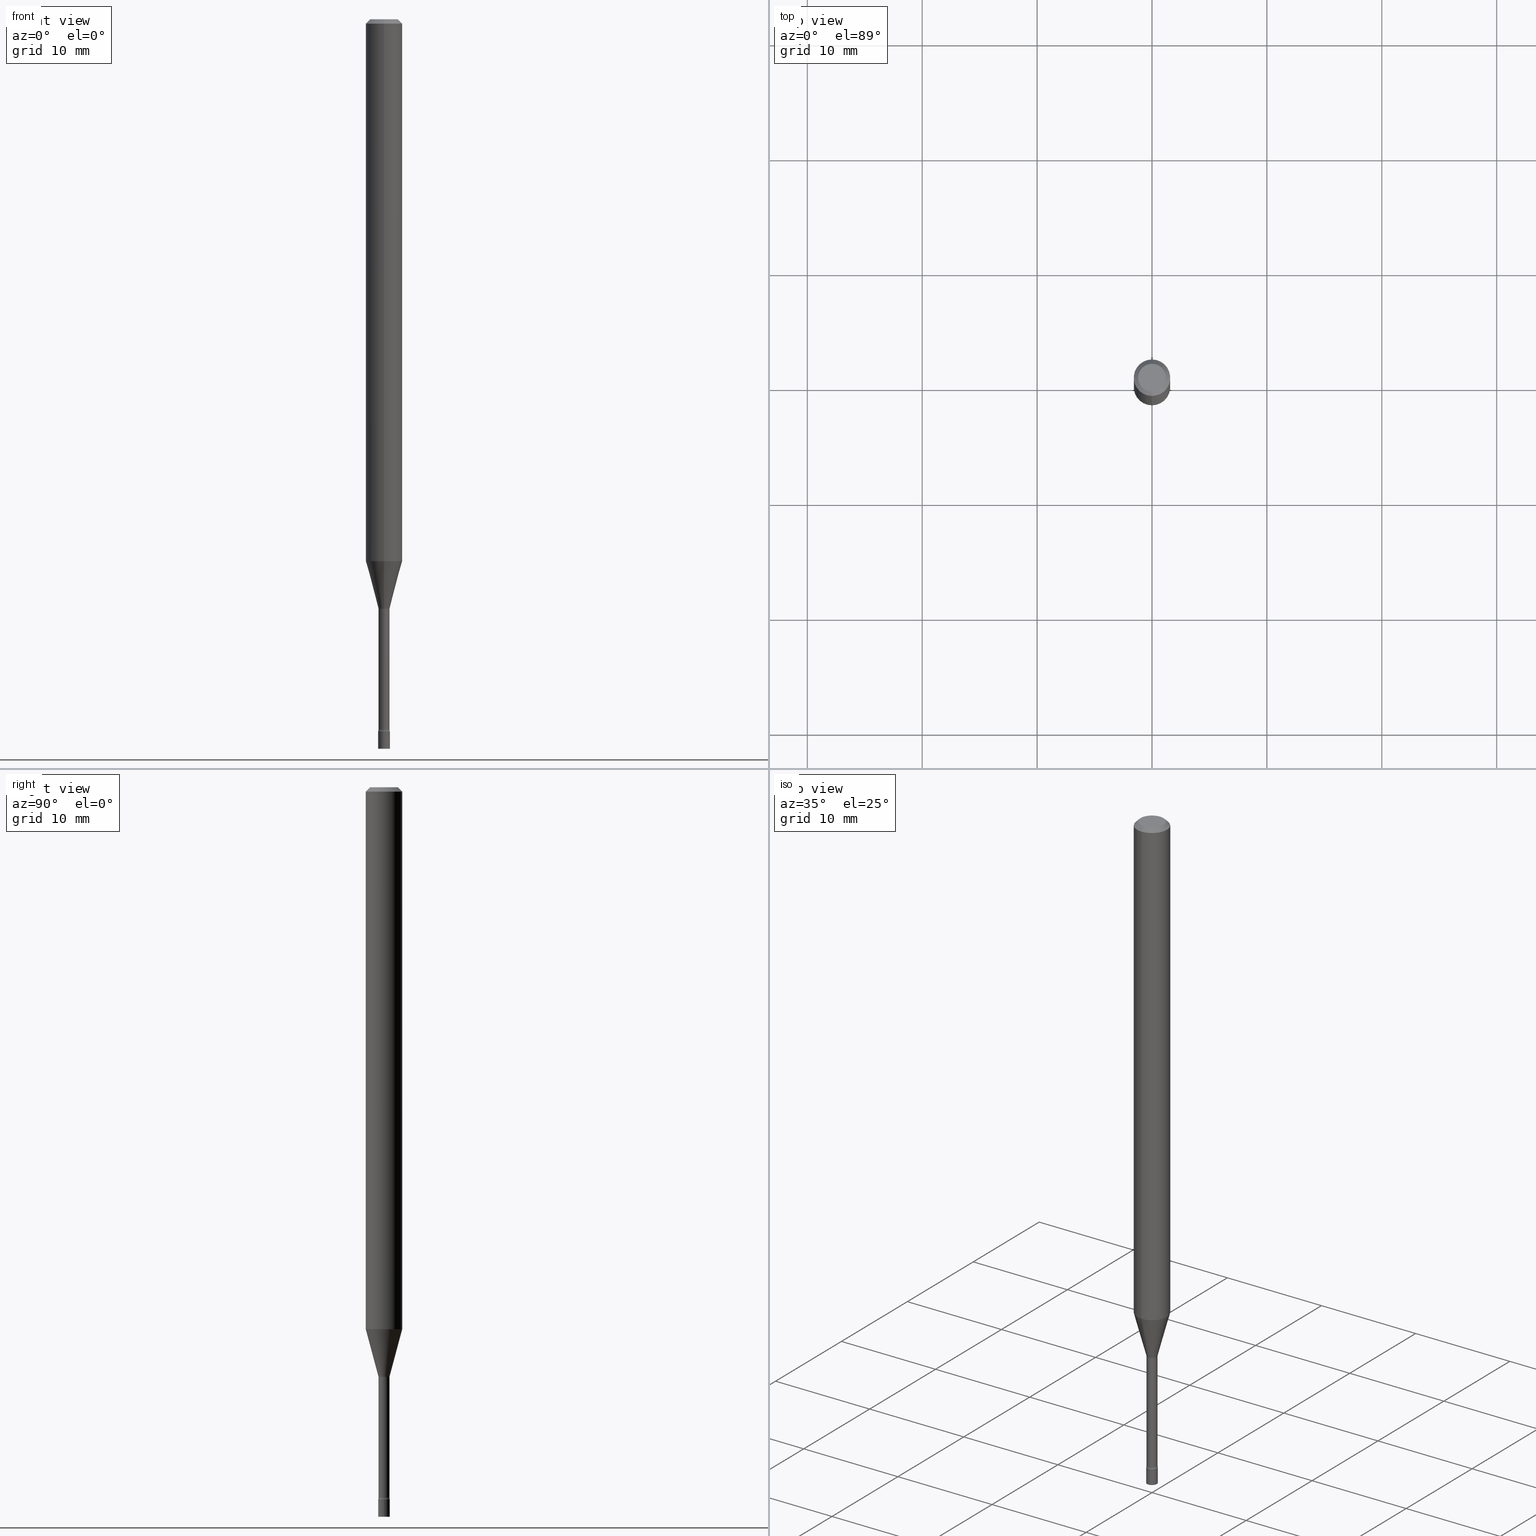
[diagram: canonical four-view strip — front | top / right | iso, engineering-drawing reading convention]
A machine part, canonical four-view strip (front | top / right | iso — engineering-drawing reading convention). The complete STEP part file that produces these views, byte-faithful:
ISO-10303-21;
HEADER;
FILE_DESCRIPTION (( 'STEP AP203' ),
    '1' );
FILE_NAME ('03596.STEP',
    '2024-03-08T22:00:57',
    ( '' ),
    ( '' ),
    'SwSTEP 2.0',
    'SolidWorks 2023',
    '' );
FILE_SCHEMA (( 'CONFIG_CONTROL_DESIGN' ));
ENDSEC;

DATA;
#1 = VECTOR ( 'NONE', #510, 39.37007874015748143 ) ;
#2 = VERTEX_POINT ( 'NONE', #470 ) ;
#3 = APPROVAL_PERSON_ORGANIZATION ( #377, #199, #175 ) ;
#4 = VERTEX_POINT ( 'NONE', #113 ) ;
#5 = DIRECTION ( 'NONE',  ( -2.438088387897960049E-29, 3.491481338843145188E-15, 1.000000000000000000 ) ) ;
#6 = APPROVAL_ROLE ( '' ) ;
#7 = AXIS2_PLACEMENT_3D ( 'NONE', #341, #99, #302 ) ;
#8 = AXIS2_PLACEMENT_3D ( 'NONE', #481, #90, #50 ) ;
#9 = ADVANCED_FACE ( 'NONE', ( #86 ), #170, .T. ) ;
#10 = PRODUCT_RELATED_PRODUCT_CATEGORY ( 'detail', '', ( #98 ) ) ;
#11 = CARTESIAN_POINT ( 'NONE',  ( 4.935092455948034223E-29, -7.046260916162748701E-15, -2.018092501787273285 ) ) ;
#12 = ADVANCED_FACE ( 'NONE', ( #350 ), #204, .F. ) ;
#13 = CARTESIAN_POINT ( 'NONE',  ( 3.668136459238664035E-31, -5.237317598119821879E-17, -0.01500000000000003067 ) ) ;
#14 = AXIS2_PLACEMENT_3D ( 'NONE', #176, #213, #67 ) ;
#15 = CLOSED_SHELL ( 'NONE', ( #127, #9, #101, #316 ) ) ;
#16 = ORIENTED_EDGE ( 'NONE', *, *, #116, .T. ) ;
#17 = ORIENTED_EDGE ( 'NONE', *, *, #298, .F. ) ;
#18 = DATE_AND_TIME ( #498, #414 ) ;
#19 = CARTESIAN_POINT ( 'NONE',  ( -4.364351673553916201E-16, -0.06250000000000000000, 2.182215665883254699E-16 ) ) ;
#20 = ADVANCED_FACE ( 'NONE', ( #252 ), #133, .T. ) ;
#21 = EDGE_LOOP ( 'NONE', ( #443, #78, #45, #126 ) ) ;
#22 = CIRCLE ( 'NONE', #60, 0.01931111260566398605 ) ;
#23 = CC_DESIGN_APPROVAL ( #41, ( #446 ) ) ;
#24 = DIRECTION ( 'NONE',  ( -2.445424306159104546E-29, 3.491545065413207519E-15, 1.000000000000000000 ) ) ;
#25 = CARTESIAN_POINT ( 'NONE',  ( 1.372137078140477580E-16, 0.01931111260565693613, -2.018092501787273285 ) ) ;
#26 = EDGE_LOOP ( 'NONE', ( #406, #493 ) ) ;
#27 = EDGE_CURVE ( 'NONE', #178, #150, #136, .T. ) ;
#28 = CARTESIAN_POINT ( 'NONE',  ( -1.312796983404428095E-16, -0.01880000000000857374, -2.434121224617320944 ) ) ;
#29 = CARTESIAN_POINT ( 'NONE',  ( 3.316907271900976096E-16, 0.04749999999999999362, -1.803038325650228623E-16 ) ) ;
#30 = EDGE_CURVE ( 'NONE', #438, #229, #347, .T. ) ;
#31 = ORIENTED_EDGE ( 'NONE', *, *, #429, .T. ) ;
#32 = ADVANCED_BREP_SHAPE_REPRESENTATION ( '03596', ( #282, #106, #509 ), #203 ) ;
#33 = AXIS2_PLACEMENT_3D ( 'NONE', #29, #180, #111 ) ;
#34 = CYLINDRICAL_SURFACE ( 'NONE', #209, 0.01880000000000003543 ) ;
#35 = DIRECTION ( 'NONE',  ( -2.445424306159104546E-29, 3.491545065413207519E-15, 1.000000000000000000 ) ) ;
#36 = VECTOR ( 'NONE', #141, 39.37007874015748143 ) ;
#37 = PERSON_AND_ORGANIZATION ( #426, #373 ) ;
#38 = DIRECTION ( 'NONE',  ( 7.105427357601000281E-15, 1.000000000000000000, 0.000000000000000000 ) ) ;
#39 = ORIENTED_EDGE ( 'NONE', *, *, #109, .T. ) ;
#40 = CARTESIAN_POINT ( 'NONE',  ( 4.935092455948034223E-29, -7.046260916162748701E-15, -2.018092501787273285 ) ) ;
#41 = APPROVAL ( #488, 'UNSPECIFIED' ) ;
#42 = EDGE_LOOP ( 'NONE', ( #144, #339, #193, #122 ) ) ;
#43 = DIRECTION ( 'NONE',  ( -4.851104656540964275E-15, -0.7071067811865500152, -0.7071067811865450192 ) ) ;
#44 = EDGE_CURVE ( 'NONE', #320, #482, #417, .T. ) ;
#45 = ORIENTED_EDGE ( 'NONE', *, *, #334, .T. ) ;
#46 = DIRECTION ( 'NONE',  ( 1.000000000000000000, -6.982962677686265922E-15, 4.876176775795935793E-29 ) ) ;
#47 = VECTOR ( 'NONE', #472, 39.37007874015748143 ) ;
#48 = EDGE_LOOP ( 'NONE', ( #409, #182, #401, #465 ) ) ;
#49 = CARTESIAN_POINT ( 'NONE',  ( 1.378452907375191717E-16, 0.01879999999999157692, -2.434121224617320944 ) ) ;
#50 = DIRECTION ( 'NONE',  ( -6.982962677686265922E-15, -1.000000000000000000, 0.000000000000000000 ) ) ;
#51 = LINE ( 'NONE', #216, #403 ) ;
#52 =( LENGTH_UNIT ( ) NAMED_UNIT ( * ) SI_UNIT ( $, .METRE. ) );
#53 = LOCAL_TIME ( 17, 0, 57.00000000000000000, #105 ) ;
#54 = EDGE_CURVE ( 'NONE', #4, #178, #95, .T. ) ;
#55 = AXIS2_PLACEMENT_3D ( 'NONE', #258, #253, #381 ) ;
#56 = CALENDAR_DATE ( 2024, 8, 3 ) ;
#57 = CARTESIAN_POINT ( 'NONE',  ( 4.364351673553919652E-16, 0.06249999999999995143, -0.01500000000000024751 ) ) ;
#58 = DIRECTION ( 'NONE',  ( -6.982962677686265922E-15, -1.000000000000000000, 3.491545065413207519E-15 ) ) ;
#59 = EDGE_LOOP ( 'NONE', ( #464, #432, #259, #226 ) ) ;
#60 = AXIS2_PLACEMENT_3D ( 'NONE', #407, #520, #160 ) ;
#61 = CC_DESIGN_APPROVAL ( #374, ( #467 ) ) ;
#62 = PRODUCT_DEFINITION_SHAPE ( 'NONE', 'NONE',  #467 ) ;
#63 = CYLINDRICAL_SURFACE ( 'NONE', #14, 0.06250000000000000000 ) ;
#64 = PERSON_AND_ORGANIZATION ( #426, #373 ) ;
#65 = DIRECTION ( 'NONE',  ( -2.445424306159104265E-29, 3.491545065413207519E-15, 1.000000000000000000 ) ) ;
#66 = PERSON_AND_ORGANIZATION_ROLE ( 'design_supplier' ) ;
#67 = DIRECTION ( 'NONE',  ( -6.982962677686265922E-15, -1.000000000000000000, 3.491545065413207519E-15 ) ) ;
#68 = DIRECTION ( 'NONE',  ( -2.445424306159104546E-29, 3.491545065413207519E-15, 1.000000000000000000 ) ) ;
#69 = ORIENTED_EDGE ( 'NONE', *, *, #298, .T. ) ;
#70 = AXIS2_PLACEMENT_3D ( 'NONE', #353, #327, #123 ) ;
#71 = DIRECTION ( 'NONE',  ( -6.982962677686265922E-15, -1.000000000000000000, 0.000000000000000000 ) ) ;
#72 = DIRECTION ( 'NONE',  ( -2.445424306159104546E-29, 3.491545065413207519E-15, 1.000000000000000000 ) ) ;
#73 = FACE_OUTER_BOUND ( 'NONE', #363, .T. ) ;
#74 = ORIENTED_EDGE ( 'NONE', *, *, #451, .T. ) ;
#75 = CARTESIAN_POINT ( 'NONE',  ( -3.773273898774340269E-16, -0.04749999999999999362, 1.369375066913362876E-16 ) ) ;
#76 = MECHANICAL_CONTEXT ( 'NONE', #288, 'mechanical' ) ;
#77 = DIRECTION ( 'NONE',  ( -6.982962677686266711E-15, -1.000000000000000000, 3.491545065413207519E-15 ) ) ;
#78 = ORIENTED_EDGE ( 'NONE', *, *, #27, .T. ) ;
#79 = EDGE_CURVE ( 'NONE', #411, #369, #507, .T. ) ;
#80 = AXIS2_PLACEMENT_3D ( 'NONE', #225, #220, #400 ) ;
#81 = FACE_OUTER_BOUND ( 'NONE', #42, .T. ) ;
#82 = AXIS2_PLACEMENT_3D ( 'NONE', #200, #371, #330 ) ;
#83 = DIRECTION ( 'NONE',  ( -2.445424306159104546E-29, 3.491545065413207519E-15, 1.000000000000000000 ) ) ;
#84 = VERTEX_POINT ( 'NONE', #442 ) ;
#85 = DIRECTION ( 'NONE',  ( -2.445468806185136597E-29, 3.491481338843145583E-15, 1.000000000000000000 ) ) ;
#86 = FACE_OUTER_BOUND ( 'NONE', #502, .T. ) ;
#87 = CYLINDRICAL_SURFACE ( 'NONE', #167, 0.02000000000000000042 ) ;
#88 = ORIENTED_EDGE ( 'NONE', *, *, #248, .F. ) ;
#89 = AXIS2_PLACEMENT_3D ( 'NONE', #13, #171, #421 ) ;
#90 = DIRECTION ( 'NONE',  ( -2.445424306159104546E-29, 3.491545065413207519E-15, 1.000000000000000000 ) ) ;
#91 = APPROVAL_DATE_TIME ( #321, #374 ) ;
#92 = ADVANCED_FACE ( 'NONE', ( #81 ), #108, .T. ) ;
#93 = CARTESIAN_POINT ( 'NONE',  ( -1.312796983405020727E-16, -0.01880000000000003543, 6.564104722976843832E-17 ) ) ;
#94 = AXIS2_PLACEMENT_3D ( 'NONE', #195, #238, #362 ) ;
#95 = CIRCLE ( 'NONE', #246, 0.04749999999999999362 ) ;
#96 = LINE ( 'NONE', #284, #312 ) ;
#97 = APPROVAL_ROLE ( '' ) ;
#98 = PRODUCT ( '03596', '03596', '', ( #76 ) ) ;
#99 = DIRECTION ( 'NONE',  ( -2.445424306159104546E-29, 3.491545065413207519E-15, 1.000000000000000000 ) ) ;
#100 = PERSON_AND_ORGANIZATION ( #426, #373 ) ;
#101 = ADVANCED_FACE ( 'NONE', ( #469 ), #87, .T. ) ;
#102 = DIRECTION ( 'NONE',  ( -2.445424306159104546E-29, 3.491545065413207519E-15, 1.000000000000000000 ) ) ;
#103 = CIRCLE ( 'NONE', #129, 0.01500000000000002720 ) ;
#104 = VECTOR ( 'NONE', #494, 39.37007874015748143 ) ;
#105 = COORDINATED_UNIVERSAL_TIME_OFFSET ( 5, 0, .BEHIND. ) ;
#106 = MANIFOLD_SOLID_BREP ( 'Body-Move/Copy2[2]', #326 ) ;
#107 = UNCERTAINTY_MEASURE_WITH_UNIT (LENGTH_MEASURE( 1.000000000000000082E-05 ), #293, 'distance_accuracy_value', 'NONE');
#108 = CYLINDRICAL_SURFACE ( 'NONE', #354, 0.01880000000000003543 ) ;
#109 = EDGE_CURVE ( 'NONE', #2, #217, #275, .T. ) ;
#110 = FACE_OUTER_BOUND ( 'NONE', #26, .T. ) ;
#111 = DIRECTION ( 'NONE',  ( 6.982962677686265922E-15, 1.000000000000000000, -3.491545065413207519E-15 ) ) ;
#112 = DIRECTION ( 'NONE',  ( -1.000000000000000000, 6.982962677686265922E-15, -4.883557194083112340E-29 ) ) ;
#113 = CARTESIAN_POINT ( 'NONE',  ( 3.840629472727447874E-16, 0.04749999999999999362, -1.947592745229183872E-16 ) ) ;
#114 = DIRECTION ( 'NONE',  ( -6.982962677686265922E-15, -1.000000000000000000, 3.483106191921935554E-15 ) ) ;
#115 = ORIENTED_EDGE ( 'NONE', *, *, #462, .T. ) ;
#116 = EDGE_CURVE ( 'NONE', #2, #311, #22, .T. ) ;
#117 = CIRCLE ( 'NONE', #131, 0.01880000000000007360 ) ;
#118 = DIRECTION ( 'NONE',  ( -6.982962677686265922E-15, -1.000000000000000000, 4.370956789862821150E-15 ) ) ;
#119 = APPROVAL_PERSON_ORGANIZATION ( #64, #41, #97 ) ;
#120 = EDGE_CURVE ( 'NONE', #482, #320, #461, .T. ) ;
#121 = AXIS2_PLACEMENT_3D ( 'NONE', #192, #278, #154 ) ;
#122 = ORIENTED_EDGE ( 'NONE', *, *, #79, .F. ) ;
#123 = DIRECTION ( 'NONE',  ( 1.000000000000000000, -6.982962677686284065E-15, 0.000000000000000000 ) ) ;
#124 = ORIENTED_EDGE ( 'NONE', *, *, #308, .F. ) ;
#125 = FACE_OUTER_BOUND ( 'NONE', #346, .T. ) ;
#126 = ORIENTED_EDGE ( 'NONE', *, *, #429, .F. ) ;
#127 = ADVANCED_FACE ( 'NONE', ( #506 ), #189, .T. ) ;
#128 = PERSON_AND_ORGANIZATION ( #426, #373 ) ;
#129 = AXIS2_PLACEMENT_3D ( 'NONE', #410, #309, #430 ) ;
#130 = LENGTH_MEASURE_WITH_UNIT ( LENGTH_MEASURE( 0.02539999999999999897 ), #52 );
#131 = AXIS2_PLACEMENT_3D ( 'NONE', #405, #68, #390 ) ;
#132 = CIRCLE ( 'NONE', #211, 0.02000000000000000042 ) ;
#133 = CYLINDRICAL_SURFACE ( 'NONE', #55, 0.06250000000000000000 ) ;
#134 = ORIENTED_EDGE ( 'NONE', *, *, #54, .F. ) ;
#135 = DIMENSIONAL_EXPONENTS ( 1.000000000000000000, 0.000000000000000000, 0.000000000000000000, 0.000000000000000000, 0.000000000000000000, 0.000000000000000000, 0.000000000000000000 ) ;
#136 = LINE ( 'NONE', #387, #274 ) ;
#137 = EDGE_LOOP ( 'NONE', ( #386, #239, #156, #17 ) ) ;
#138 = CIRCLE ( 'NONE', #222, 0.01500000000000002720 ) ;
#139 = CC_DESIGN_APPROVAL ( #199, ( #337 ) ) ;
#140 = COORDINATED_UNIVERSAL_TIME_OFFSET ( 5, 0, .BEHIND. ) ;
#141 = DIRECTION ( 'NONE',  ( 4.937700262164548042E-15, 0.7071067811865451302, -0.7071067811865499042 ) ) ;
#142 = CARTESIAN_POINT ( 'NONE',  ( 4.944676269635571097E-29, -7.059687238041231398E-15, -2.021974787463811207 ) ) ;
#143 = DIRECTION ( 'NONE',  ( 2.438088387897960049E-29, -3.491481338843145188E-15, -1.000000000000000000 ) ) ;
#144 = ORIENTED_EDGE ( 'NONE', *, *, #402, .F. ) ;
#145 = PERSON_AND_ORGANIZATION_ROLE ( 'classification_officer' ) ;
#146 = DIRECTION ( 'NONE',  ( 1.000000000000000000, -7.105427357601001070E-15, 4.926316288967482694E-29 ) ) ;
#147 = EDGE_LOOP ( 'NONE', ( #88, #304, #221, #279 ) ) ;
#148 = DIRECTION ( 'NONE',  ( -1.807323732225326984E-15, -0.2588190451025177419, 0.9659258262890690894 ) ) ;
#149 = CARTESIAN_POINT ( 'NONE',  ( 5.952567525274821981E-29, -8.498688832233400382E-15, -2.434121224617320944 ) ) ;
#150 = VERTEX_POINT ( 'NONE', #232 ) ;
#151 = CIRCLE ( 'NONE', #295, 0.06250000000000000000 ) ;
#152 = DIRECTION ( 'NONE',  ( -6.982962677686266711E-15, -1.000000000000000000, 3.491545065413207519E-15 ) ) ;
#153 = ORIENTED_EDGE ( 'NONE', *, *, #290, .T. ) ;
#154 = DIRECTION ( 'NONE',  ( 1.000000000000000000, -6.982962677686284065E-15, 0.000000000000000000 ) ) ;
#155 = DIRECTION ( 'NONE',  ( -6.982962677686265922E-15, -1.000000000000000000, 3.491545065413207913E-15 ) ) ;
#156 = ORIENTED_EDGE ( 'NONE', *, *, #281, .T. ) ;
#157 = DIRECTION ( 'NONE',  ( -6.982962677686265922E-15, -1.000000000000000000, 0.000000000000000000 ) ) ;
#158 = ORIENTED_EDGE ( 'NONE', *, *, #30, .T. ) ;
#159 = CONICAL_SURFACE ( 'NONE', #89, 0.06250000000000000000, 0.7853981633974483900 ) ;
#160 = DIRECTION ( 'NONE',  ( -6.982962677686265922E-15, -1.000000000000000000, 0.000000000000000000 ) ) ;
#161 = CC_DESIGN_SECURITY_CLASSIFICATION ( #337, ( #446 ) ) ;
#162 = AXIS2_PLACEMENT_3D ( 'NONE', #466, #267, #397 ) ;
#163 = ORIENTED_EDGE ( 'NONE', *, *, #120, .T. ) ;
#164 = DIRECTION ( 'NONE',  ( -2.445424306159104546E-29, 3.491545065413207519E-15, 1.000000000000000000 ) ) ;
#165 = ORIENTED_EDGE ( 'NONE', *, *, #79, .T. ) ;
#166 = DIRECTION ( 'NONE',  ( -2.445424306159104546E-29, 3.491545065413207519E-15, 1.000000000000000000 ) ) ;
#167 = AXIS2_PLACEMENT_3D ( 'NONE', #479, #85, #46 ) ;
#168 = EDGE_CURVE ( 'NONE', #2, #369, #103, .T. ) ;
#169 = CC_DESIGN_PERSON_AND_ORGANIZATION_ASSIGNMENT ( #215, #66, ( #446 ) ) ;
#170 = PLANE ( 'NONE',  #440 ) ;
#171 = DIRECTION ( 'NONE',  ( 2.445424306159104546E-29, -3.491545065413207519E-15, -1.000000000000000000 ) ) ;
#172 = FACE_OUTER_BOUND ( 'NONE', #191, .T. ) ;
#173 = ADVANCED_FACE ( 'NONE', ( #73 ), #358, .F. ) ;
#174 = ORIENTED_EDGE ( 'NONE', *, *, #462, .F. ) ;
#175 = APPROVAL_ROLE ( '' ) ;
#176 = CARTESIAN_POINT ( 'NONE',  ( 0.000000000000000000, 0.000000000000000000, 0.000000000000000000 ) ) ;
#177 = VECTOR ( 'NONE', #245, 39.37007874015748143 ) ;
#178 = VERTEX_POINT ( 'NONE', #75 ) ;
#179 = PLANE ( 'NONE',  #477 ) ;
#180 = DIRECTION ( 'NONE',  ( 2.445424306159104265E-29, -3.491545065413207519E-15, -1.000000000000000000 ) ) ;
#181 = CARTESIAN_POINT ( 'NONE',  ( 5.966835307028215574E-29, -8.519369959608227451E-15, -2.440000000000000391 ) ) ;
#182 = ORIENTED_EDGE ( 'NONE', *, *, #486, .T. ) ;
#183 = CONICAL_SURFACE ( 'NONE', #7, 0.01931111260566398605, 0.2617993877991497964 ) ;
#184 = AXIS2_PLACEMENT_3D ( 'NONE', #450, #294, #418 ) ;
#185 = EDGE_CURVE ( 'NONE', #438, #320, #441, .T. ) ;
#186 = CARTESIAN_POINT ( 'NONE',  ( -1.348487785898990376E-16, -0.01931111260567103249, -2.018092501787273285 ) ) ;
#187 = CARTESIAN_POINT ( 'NONE',  ( 0.02000000000000000042, -8.658873720331001644E-15, -2.440000000000000391 ) ) ;
#188 = VERTEX_POINT ( 'NONE', #269 ) ;
#189 = CYLINDRICAL_SURFACE ( 'NONE', #491, 0.02000000000000000042 ) ;
#190 = CARTESIAN_POINT ( 'NONE',  ( 0.000000000000000000, 0.000000000000000000, 0.000000000000000000 ) ) ;
#191 = EDGE_LOOP ( 'NONE', ( #328, #307, #478, #268 ) ) ;
#192 = CARTESIAN_POINT ( 'NONE',  ( 6.113672015462842613E-29, -8.728703347107864943E-15, -2.500000000000000000 ) ) ;
#193 = ORIENTED_EDGE ( 'NONE', *, *, #393, .T. ) ;
#194 = CARTESIAN_POINT ( 'NONE',  ( -1.312796983404523252E-16, -0.01880000000000705759, -2.021974787463811207 ) ) ;
#195 = CARTESIAN_POINT ( 'NONE',  ( 4.944586291704893259E-29, -7.059816091559188627E-15, -2.021974787463811207 ) ) ;
#196 = AXIS2_PLACEMENT_3D ( 'NONE', #416, #164, #205 ) ;
#197 = EDGE_LOOP ( 'NONE', ( #242, #434, #39, #424 ) ) ;
#198 = CARTESIAN_POINT ( 'NONE',  ( 4.944676269635571097E-29, -7.059687238041231398E-15, -2.021974787463811207 ) ) ;
#199 = APPROVAL ( #492, 'UNSPECIFIED' ) ;
#200 = CARTESIAN_POINT ( 'NONE',  ( 5.966835307028215574E-29, -8.519369959608227451E-15, -2.440000000000000391 ) ) ;
#201 = CARTESIAN_POINT ( 'NONE',  ( 1.335820343229585471E-16, 0.01879999999999294041, -2.021974787463811207 ) ) ;
#202 = CIRCLE ( 'NONE', #499, 0.01499999999999998036 ) ;
#203 =( GEOMETRIC_REPRESENTATION_CONTEXT ( 3 ) GLOBAL_UNCERTAINTY_ASSIGNED_CONTEXT ( ( #107 ) ) GLOBAL_UNIT_ASSIGNED_CONTEXT ( ( #293, #428, #219 ) ) REPRESENTATION_CONTEXT ( 'NONE', 'WORKASPACE' ) );
#204 = TOROIDAL_SURFACE ( 'NONE', #500, 0.03380000000000000365, 0.01500000000000002373 ) ;
#205 = DIRECTION ( 'NONE',  ( -6.982962677686265922E-15, -1.000000000000000000, 3.483106191921935554E-15 ) ) ;
#206 = CARTESIAN_POINT ( 'NONE',  ( 0.02000000000000000042, -8.868362600661589961E-15, -2.500000000000000000 ) ) ;
#207 = CC_DESIGN_PERSON_AND_ORGANIZATION_ASSIGNMENT ( #100, #145, ( #337 ) ) ;
#208 = CONICAL_SURFACE ( 'NONE', #485, 0.01931111260566398605, 0.2617993877991497964 ) ;
#209 = AXIS2_PLACEMENT_3D ( 'NONE', #483, #512, #317 ) ;
#210 = PLANE ( 'NONE',  #372 ) ;
#211 = AXIS2_PLACEMENT_3D ( 'NONE', #444, #412, #484 ) ;
#212 = DIRECTION ( 'NONE',  ( -6.982962677686265922E-15, -1.000000000000000000, 3.491545065413207913E-15 ) ) ;
#213 = DIRECTION ( 'NONE',  ( -2.445424306159104546E-29, 3.491545065413207519E-15, 1.000000000000000000 ) ) ;
#214 = FACE_OUTER_BOUND ( 'NONE', #463, .T. ) ;
#215 = PERSON_AND_ORGANIZATION ( #426, #373 ) ;
#216 = CARTESIAN_POINT ( 'NONE',  ( 1.335820343228990867E-16, 0.01880000000000003543, -6.564104722976843832E-17 ) ) ;
#217 = VERTEX_POINT ( 'NONE', #435 ) ;
#218 = CARTESIAN_POINT ( 'NONE',  ( 5.952459206816961247E-29, -8.498843950430159487E-15, -2.434121224617320944 ) ) ;
#219 =( NAMED_UNIT ( * ) SI_UNIT ( $, .STERADIAN. ) SOLID_ANGLE_UNIT ( ) );
#220 = DIRECTION ( 'NONE',  ( -2.445424306159104546E-29, 3.491545065413207519E-15, 1.000000000000000000 ) ) ;
#221 = ORIENTED_EDGE ( 'NONE', *, *, #448, .T. ) ;
#222 = AXIS2_PLACEMENT_3D ( 'NONE', #501, #146, #38 ) ;
#223 = CARTESIAN_POINT ( 'NONE',  ( 4.440892098501077785E-16, 0.06249999999999350520, -1.856909379709240637 ) ) ;
#224 = DESIGN_CONTEXT ( 'detailed design', #261, 'design' ) ;
#225 = CARTESIAN_POINT ( 'NONE',  ( 5.952567525274821981E-29, -8.498688832233400382E-15, -2.434121224617320944 ) ) ;
#226 = ORIENTED_EDGE ( 'NONE', *, *, #448, .F. ) ;
#227 = CARTESIAN_POINT ( 'NONE',  ( 0.02000000000000000042, -1.396592535537253145E-16, 9.752353551591871936E-31 ) ) ;
#228 = FACE_OUTER_BOUND ( 'NONE', #137, .T. ) ;
#229 = VERTEX_POINT ( 'NONE', #404 ) ;
#230 = EDGE_CURVE ( 'NONE', #311, #2, #325, .T. ) ;
#231 = AXIS2_PLACEMENT_3D ( 'NONE', #149, #72, #155 ) ;
#232 = CARTESIAN_POINT ( 'NONE',  ( -4.364351673553912750E-16, -0.06250000000000005551, -0.01499999999999981209 ) ) ;
#233 = EDGE_CURVE ( 'NONE', #217, #342, #422, .T. ) ;
#234 = CARTESIAN_POINT ( 'NONE',  ( 2.401634446869737436E-16, 0.03379999999999155208, -2.434121224617320944 ) ) ;
#235 = ORIENTED_EDGE ( 'NONE', *, *, #116, .F. ) ;
#236 = ADVANCED_FACE ( 'NONE', ( #490 ), #508, .F. ) ;
#237 = ADVANCED_FACE ( 'NONE', ( #244 ), #63, .T. ) ;
#238 = DIRECTION ( 'NONE',  ( -2.445424306159104546E-29, 3.491545065413207519E-15, 1.000000000000000000 ) ) ;
#239 = ORIENTED_EDGE ( 'NONE', *, *, #357, .T. ) ;
#240 = EDGE_CURVE ( 'NONE', #504, #299, #399, .T. ) ;
#241 = CARTESIAN_POINT ( 'NONE',  ( 0.000000000000000000, 0.000000000000000000, 0.000000000000000000 ) ) ;
#242 = ORIENTED_EDGE ( 'NONE', *, *, #364, .F. ) ;
#243 = CIRCLE ( 'NONE', #82, 0.02000000000000000042 ) ;
#244 = FACE_OUTER_BOUND ( 'NONE', #59, .T. ) ;
#245 = DIRECTION ( 'NONE',  ( -2.445424306159104546E-29, 3.491545065413207519E-15, 1.000000000000000000 ) ) ;
#246 = AXIS2_PLACEMENT_3D ( 'NONE', #365, #318, #152 ) ;
#247 = CONICAL_SURFACE ( 'NONE', #456, 0.06250000000000000000, 0.7853981633974483900 ) ;
#248 = EDGE_CURVE ( 'NONE', #342, #188, #96, .T. ) ;
#249 = CARTESIAN_POINT ( 'NONE',  ( 1.396592535537849721E-16, 0.01999999999999147945, -2.440000000000000391 ) ) ;
#250 = DATE_TIME_ROLE ( 'classification_date' ) ;
#251 = ADVANCED_FACE ( 'NONE', ( #214 ), #183, .T. ) ;
#252 = FACE_OUTER_BOUND ( 'NONE', #147, .T. ) ;
#253 = DIRECTION ( 'NONE',  ( -2.445424306159104546E-29, 3.491545065413207519E-15, 1.000000000000000000 ) ) ;
#254 = EDGE_LOOP ( 'NONE', ( #158, #153, #360, #349 ) ) ;
#255 = ADVANCED_FACE ( 'NONE', ( #296 ), #210, .F. ) ;
#256 = DATE_TIME_ROLE ( 'creation_date' ) ;
#257 = ADVANCED_FACE ( 'NONE', ( #375 ), #208, .T. ) ;
#258 = CARTESIAN_POINT ( 'NONE',  ( 0.000000000000000000, 0.000000000000000000, 0.000000000000000000 ) ) ;
#259 = ORIENTED_EDGE ( 'NONE', *, *, #334, .F. ) ;
#260 = DIRECTION ( 'NONE',  ( -1.000000000000000000, 6.982962677686265922E-15, -4.876176775795935793E-29 ) ) ;
#261 = APPLICATION_CONTEXT ( 'configuration controlled 3d designs of mechanical parts and assemblies' ) ;
#262 = DATE_AND_TIME ( #305, #287 ) ;
#263 = AXIS2_PLACEMENT_3D ( 'NONE', #218, #24, #71 ) ;
#264 = DIRECTION ( 'NONE',  ( -2.445468806185136597E-29, 3.491481338843145583E-15, 1.000000000000000000 ) ) ;
#265 = DIRECTION ( 'NONE',  ( 7.105427357601000281E-15, 1.000000000000000000, 0.000000000000000000 ) ) ;
#266 = ADVANCED_FACE ( 'NONE', ( #376 ), #159, .T. ) ;
#267 = DIRECTION ( 'NONE',  ( -2.445468806185136597E-29, 3.491481338843145583E-15, 1.000000000000000000 ) ) ;
#268 = ORIENTED_EDGE ( 'NONE', *, *, #393, .F. ) ;
#269 = CARTESIAN_POINT ( 'NONE',  ( 4.440892098501082715E-16, 0.06249999999999995143, -0.01500000000000024751 ) ) ;
#270 = DIRECTION ( 'NONE',  ( -2.445424306159104546E-29, 3.491545065413207519E-15, 1.000000000000000000 ) ) ;
#271 = ORIENTED_EDGE ( 'NONE', *, *, #281, .F. ) ;
#272 = AXIS2_PLACEMENT_3D ( 'NONE', #181, #355, #468 ) ;
#273 = LOCAL_TIME ( 17, 0, 57.00000000000000000, #285 ) ;
#274 = VECTOR ( 'NONE', #43, 39.37007874015748143 ) ;
#275 = LINE ( 'NONE', #186, #283 ) ;
#276 = ORIENTED_EDGE ( 'NONE', *, *, #168, .F. ) ;
#277 = APPROVAL_STATUS ( 'not_yet_approved' ) ;
#278 = DIRECTION ( 'NONE',  ( -2.445468806185136597E-29, 3.491481338843145583E-15, 1.000000000000000000 ) ) ;
#279 = ORIENTED_EDGE ( 'NONE', *, *, #451, .F. ) ;
#280 = CARTESIAN_POINT ( 'NONE',  ( 3.668136459238664035E-31, -5.237317598119821879E-17, -0.01500000000000003067 ) ) ;
#281 = EDGE_CURVE ( 'NONE', #511, #84, #413, .T. ) ;
#282 = MANIFOLD_SOLID_BREP ( 'Body-Move/Copy2[1]', #15 ) ;
#283 = VECTOR ( 'NONE', #148, 39.37007874015748143 ) ;
#284 = CARTESIAN_POINT ( 'NONE',  ( 4.440892098500625669E-16, 0.06250000000000000000, -2.182215665883254699E-16 ) ) ;
#285 = COORDINATED_UNIVERSAL_TIME_OFFSET ( 5, 0, .BEHIND. ) ;
#286 = LOCAL_TIME ( 17, 0, 57.00000000000000000, #340 ) ;
#287 = LOCAL_TIME ( 17, 0, 57.00000000000000000, #379 ) ;
#288 = APPLICATION_CONTEXT ( 'configuration controlled 3d designs of mechanical parts and assemblies' ) ;
#289 = PERSON_AND_ORGANIZATION_ROLE ( 'creator' ) ;
#290 = EDGE_CURVE ( 'NONE', #229, #482, #515, .T. ) ;
#291 = DIRECTION ( 'NONE',  ( 6.982962677686265922E-15, 1.000000000000000000, -3.483106191921935554E-15 ) ) ;
#292 = ADVANCED_FACE ( 'NONE', ( #314 ), #331, .F. ) ;
#293 =( CONVERSION_BASED_UNIT ( 'INCH', #130 ) LENGTH_UNIT ( ) NAMED_UNIT ( #135 ) );
#294 = DIRECTION ( 'NONE',  ( -2.445424306159104546E-29, 3.491545065413207519E-15, 1.000000000000000000 ) ) ;
#295 = AXIS2_PLACEMENT_3D ( 'NONE', #425, #270, #114 ) ;
#296 = FACE_OUTER_BOUND ( 'NONE', #474, .T. ) ;
#297 = PERSON_AND_ORGANIZATION_ROLE ( 'creator' ) ;
#298 = EDGE_CURVE ( 'NONE', #299, #84, #301, .T. ) ;
#299 = VERTEX_POINT ( 'NONE', #28 ) ;
#300 = ADVANCED_FACE ( 'NONE', ( #228 ), #378, .F. ) ;
#301 = CIRCLE ( 'NONE', #455, 0.01499999999999997169 ) ;
#302 = DIRECTION ( 'NONE',  ( -6.982962677686265922E-15, -1.000000000000000000, 0.000000000000000000 ) ) ;
#303 = ORIENTED_EDGE ( 'NONE', *, *, #364, .T. ) ;
#304 = ORIENTED_EDGE ( 'NONE', *, *, #395, .T. ) ;
#305 = CALENDAR_DATE ( 2024, 8, 3 ) ;
#306 = CC_DESIGN_PERSON_AND_ORGANIZATION_ASSIGNMENT ( #459, #297, ( #446 ) ) ;
#307 = ORIENTED_EDGE ( 'NONE', *, *, #402, .T. ) ;
#308 = EDGE_CURVE ( 'NONE', #311, #411, #138, .T. ) ;
#309 = DIRECTION ( 'NONE',  ( -1.000000000000000000, 6.982962677686265922E-15, -4.883557194083112340E-29 ) ) ;
#310 = CARTESIAN_POINT ( 'NONE',  ( -0.02000000000000000042, 1.421085471520200401E-16, -9.837870180509812545E-31 ) ) ;
#311 = VERTEX_POINT ( 'NONE', #348 ) ;
#312 = VECTOR ( 'NONE', #102, 39.37007874015748143 ) ;
#313 = APPROVAL_PERSON_ORGANIZATION ( #128, #374, #6 ) ;
#314 = FACE_OUTER_BOUND ( 'NONE', #356, .T. ) ;
#315 = ORIENTED_EDGE ( 'NONE', *, *, #109, .F. ) ;
#316 = ADVANCED_FACE ( 'NONE', ( #110 ), #179, .T. ) ;
#317 = DIRECTION ( 'NONE',  ( -6.982962677686267499E-15, -1.000000000000000000, 3.491545065413208308E-15 ) ) ;
#318 = DIRECTION ( 'NONE',  ( -2.445424306159104546E-29, 3.491545065413207519E-15, 1.000000000000000000 ) ) ;
#319 = CARTESIAN_POINT ( 'NONE',  ( 1.396592535537864759E-16, 0.01999999999999127129, -2.500000000000000000 ) ) ;
#320 = VERTEX_POINT ( 'NONE', #187 ) ;
#321 = DATE_AND_TIME ( #447, #273 ) ;
#322 = CARTESIAN_POINT ( 'NONE',  ( 4.540931331475802069E-29, -6.483482781643298717E-15, -1.856909379709240415 ) ) ;
#323 = APPLICATION_PROTOCOL_DEFINITION ( 'international standard', 'config_control_design', 1994, #288 ) ;
#324 = ORIENTED_EDGE ( 'NONE', *, *, #44, .T. ) ;
#325 = CIRCLE ( 'NONE', #336, 0.01931111260566398605 ) ;
#326 = CLOSED_SHELL ( 'NONE', ( #12, #385, #300, #266, #237, #251, #257, #20, #471, #173, #255, #292, #92, #236 ) ) ;
#327 = DIRECTION ( 'NONE',  ( -2.445468806185136597E-29, 3.491481338843145583E-15, 1.000000000000000000 ) ) ;
#328 = ORIENTED_EDGE ( 'NONE', *, *, #361, .T. ) ;
#329 = ORIENTED_EDGE ( 'NONE', *, *, #351, .T. ) ;
#330 = DIRECTION ( 'NONE',  ( -6.982962677686265922E-15, -1.000000000000000000, 0.000000000000000000 ) ) ;
#331 = TOROIDAL_SURFACE ( 'NONE', #231, 0.03380000000000005222, 0.01499999999999997689 ) ;
#332 = DIRECTION ( 'NONE',  ( -6.982962677686265922E-15, -1.000000000000000000, 3.491545065413207913E-15 ) ) ;
#333 = DIRECTION ( 'NONE',  ( -2.445424306159104546E-29, 3.491545065413207519E-15, 1.000000000000000000 ) ) ;
#334 = EDGE_CURVE ( 'NONE', #150, #188, #151, .T. ) ;
#335 = DIRECTION ( 'NONE',  ( -2.445424306159104546E-29, 3.491545065413207519E-15, 1.000000000000000000 ) ) ;
#336 = AXIS2_PLACEMENT_3D ( 'NONE', #40, #518, #157 ) ;
#337 = SECURITY_CLASSIFICATION ( '', '', #458 ) ;
#338 = DIRECTION ( 'NONE',  ( -2.445424306159104546E-29, 3.491545065413207519E-15, 1.000000000000000000 ) ) ;
#339 = ORIENTED_EDGE ( 'NONE', *, *, #240, .T. ) ;
#340 = COORDINATED_UNIVERSAL_TIME_OFFSET ( 5, 0, .BEHIND. ) ;
#341 = CARTESIAN_POINT ( 'NONE',  ( 4.935092455948034223E-29, -7.046260916162748701E-15, -2.018092501787273285 ) ) ;
#342 = VERTEX_POINT ( 'NONE', #223 ) ;
#343 = LINE ( 'NONE', #57, #36 ) ;
#344 = AXIS2_PLACEMENT_3D ( 'NONE', #437, #83, #77 ) ;
#345 = CARTESIAN_POINT ( 'NONE',  ( -2.360241385057365982E-16, -0.03380000000000855237, -2.434121224617320944 ) ) ;
#346 = EDGE_LOOP ( 'NONE', ( #352, #134, #31, #74 ) ) ;
#347 = CIRCLE ( 'NONE', #121, 0.02000000000000000042 ) ;
#348 = CARTESIAN_POINT ( 'NONE',  ( 2.906514588320780024E-16, 0.01931111260565693613, -2.018092501787273285 ) ) ;
#349 = ORIENTED_EDGE ( 'NONE', *, *, #185, .F. ) ;
#350 = FACE_OUTER_BOUND ( 'NONE', #519, .T. ) ;
#351 = EDGE_CURVE ( 'NONE', #178, #4, #436, .T. ) ;
#352 = ORIENTED_EDGE ( 'NONE', *, *, #27, .F. ) ;
#353 = CARTESIAN_POINT ( 'NONE',  ( 5.966943887091733341E-29, -8.519214466777275048E-15, -2.440000000000000391 ) ) ;
#354 = AXIS2_PLACEMENT_3D ( 'NONE', #433, #35, #394 ) ;
#355 = DIRECTION ( 'NONE',  ( -2.445424306159104546E-29, 3.491545065413207519E-15, 1.000000000000000000 ) ) ;
#356 = EDGE_LOOP ( 'NONE', ( #423, #382, #69, #115 ) ) ;
#357 = EDGE_CURVE ( 'NONE', #504, #511, #202, .T. ) ;
#358 = PLANE ( 'NONE',  #33 ) ;
#359 = PERSON_AND_ORGANIZATION_ROLE ( 'design_owner' ) ;
#360 = ORIENTED_EDGE ( 'NONE', *, *, #44, .F. ) ;
#361 = EDGE_CURVE ( 'NONE', #299, #504, #117, .T. ) ;
#362 = DIRECTION ( 'NONE',  ( -6.982962677686265922E-15, -1.000000000000000000, 0.000000000000000000 ) ) ;
#363 = EDGE_LOOP ( 'NONE', ( #366, #329 ) ) ;
#364 = EDGE_CURVE ( 'NONE', #311, #342, #392, .T. ) ;
#365 = CARTESIAN_POINT ( 'NONE',  ( 7.069937824021977262E-46, -1.009436540729143407E-31, -2.891088391579106214E-17 ) ) ;
#366 = ORIENTED_EDGE ( 'NONE', *, *, #54, .T. ) ;
#367 = AXIS2_PLACEMENT_3D ( 'NONE', #198, #166, #332 ) ;
#368 = CC_DESIGN_DATE_AND_TIME_ASSIGNMENT ( #262, #250, ( #337 ) ) ;
#369 = VERTEX_POINT ( 'NONE', #194 ) ;
#370 = CARTESIAN_POINT ( 'NONE',  ( 1.421085471520795991E-16, 0.01999999999999146905, -2.440000000000000391 ) ) ;
#371 = DIRECTION ( 'NONE',  ( -2.445424306159104546E-29, 3.491545065413207519E-15, 1.000000000000000000 ) ) ;
#372 = AXIS2_PLACEMENT_3D ( 'NONE', #249, #65, #58 ) ;
#373 = ORGANIZATION ( 'UNSPECIFIED', 'UNSPECIFIED', '' ) ;
#374 = APPROVAL ( #277, 'UNSPECIFIED' ) ;
#375 = FACE_OUTER_BOUND ( 'NONE', #197, .T. ) ;
#376 = FACE_OUTER_BOUND ( 'NONE', #21, .T. ) ;
#377 = PERSON_AND_ORGANIZATION ( #426, #373 ) ;
#378 = TOROIDAL_SURFACE ( 'NONE', #80, 0.03380000000000005222, 0.01499999999999997689 ) ;
#379 = COORDINATED_UNIVERSAL_TIME_OFFSET ( 5, 0, .BEHIND. ) ;
#380 = DATE_AND_TIME ( #56, #53 ) ;
#381 = DIRECTION ( 'NONE',  ( -6.982962677686265922E-15, -1.000000000000000000, 3.491545065413207519E-15 ) ) ;
#382 = ORIENTED_EDGE ( 'NONE', *, *, #361, .F. ) ;
#383 = APPROVAL_DATE_TIME ( #18, #41 ) ;
#384 = LINE ( 'NONE', #19, #104 ) ;
#385 = ADVANCED_FACE ( 'NONE', ( #172 ), #34, .T. ) ;
#386 = ORIENTED_EDGE ( 'NONE', *, *, #240, .F. ) ;
#387 = CARTESIAN_POINT ( 'NONE',  ( -4.287811248607203282E-16, -0.06250000000000005551, -0.01499999999999981209 ) ) ;
#388 = AXIS2_PLACEMENT_3D ( 'NONE', #322, #476, #118 ) ;
#389 = CIRCLE ( 'NONE', #196, 0.06250000000000000000 ) ;
#390 = DIRECTION ( 'NONE',  ( -6.982962677686265922E-15, -1.000000000000000000, 0.000000000000000000 ) ) ;
#391 = ORIENTED_EDGE ( 'NONE', *, *, #454, .T. ) ;
#392 = LINE ( 'NONE', #25, #445 ) ;
#393 = EDGE_CURVE ( 'NONE', #299, #369, #453, .T. ) ;
#394 = DIRECTION ( 'NONE',  ( -6.982962677686267499E-15, -1.000000000000000000, 3.491545065413208308E-15 ) ) ;
#395 = EDGE_CURVE ( 'NONE', #342, #217, #427, .T. ) ;
#396 = ORIENTED_EDGE ( 'NONE', *, *, #168, .T. ) ;
#397 = DIRECTION ( 'NONE',  ( 1.000000000000000000, -6.982962677686284065E-15, 0.000000000000000000 ) ) ;
#398 = DIRECTION ( 'NONE',  ( 1.000000000000000000, 0.000000000000000000, 0.000000000000000000 ) ) ;
#399 = CIRCLE ( 'NONE', #263, 0.01880000000000007360 ) ;
#400 = DIRECTION ( 'NONE',  ( -6.982962677686265922E-15, -1.000000000000000000, 3.491545065413207913E-15 ) ) ;
#401 = ORIENTED_EDGE ( 'NONE', *, *, #185, .T. ) ;
#402 = EDGE_CURVE ( 'NONE', #504, #411, #51, .T. ) ;
#403 = VECTOR ( 'NONE', #333, 39.37007874015748143 ) ;
#404 = CARTESIAN_POINT ( 'NONE',  ( -0.02000000000000000042, -8.481850359790549832E-15, -2.500000000000000000 ) ) ;
#405 = CARTESIAN_POINT ( 'NONE',  ( 5.952459206816961247E-29, -8.498843950430159487E-15, -2.434121224617320944 ) ) ;
#406 = ORIENTED_EDGE ( 'NONE', *, *, #30, .F. ) ;
#407 = CARTESIAN_POINT ( 'NONE',  ( 4.935092455948034223E-29, -7.046260916162748701E-15, -2.018092501787273285 ) ) ;
#408 = DIRECTION ( 'NONE',  ( 0.000000000000000000, 0.000000000000000000, 1.000000000000000000 ) ) ;
#409 = ORIENTED_EDGE ( 'NONE', *, *, #290, .F. ) ;
#410 = CARTESIAN_POINT ( 'NONE',  ( -2.360241385057463603E-16, -0.03380000000000706051, -2.021974787463811207 ) ) ;
#411 = VERTEX_POINT ( 'NONE', #201 ) ;
#412 = DIRECTION ( 'NONE',  ( -2.445468806185136597E-29, 3.491481338843145583E-15, 1.000000000000000000 ) ) ;
#413 = CIRCLE ( 'NONE', #272, 0.02000000000000000042 ) ;
#414 = LOCAL_TIME ( 17, 0, 57.00000000000000000, #140 ) ;
#415 = SHAPE_DEFINITION_REPRESENTATION ( #62, #32 ) ;
#416 = CARTESIAN_POINT ( 'NONE',  ( 3.668136459238664035E-31, -5.237317598119821879E-17, -0.01500000000000003067 ) ) ;
#417 = CIRCLE ( 'NONE', #162, 0.02000000000000000042 ) ;
#418 = DIRECTION ( 'NONE',  ( -6.982962677686265922E-15, -1.000000000000000000, 4.370956789862821150E-15 ) ) ;
#419 = CARTESIAN_POINT ( 'NONE',  ( 5.966943887091733341E-29, -8.519214466777275048E-15, -2.440000000000000391 ) ) ;
#420 = APPROVAL_DATE_TIME ( #517, #199 ) ;
#421 = DIRECTION ( 'NONE',  ( 6.982962677686265922E-15, 1.000000000000000000, -3.483106191921935554E-15 ) ) ;
#422 = CIRCLE ( 'NONE', #388, 0.06250000000000000000 ) ;
#423 = ORIENTED_EDGE ( 'NONE', *, *, #357, .F. ) ;
#424 = ORIENTED_EDGE ( 'NONE', *, *, #395, .F. ) ;
#425 = CARTESIAN_POINT ( 'NONE',  ( 3.668136459238664035E-31, -5.237317598119821879E-17, -0.01500000000000003067 ) ) ;
#426 = PERSON ( 'UNSPECIFIED', 'UNSPECIFIED', 'UNSPECIFIED', ('UNSPECIFIED'), ('UNSPECIFIED'), ('UNSPECIFIED') ) ;
#427 = CIRCLE ( 'NONE', #184, 0.06250000000000000000 ) ;
#428 =( NAMED_UNIT ( * ) PLANE_ANGLE_UNIT ( ) SI_UNIT ( $, .RADIAN. ) );
#429 = EDGE_CURVE ( 'NONE', #4, #188, #343, .T. ) ;
#430 = DIRECTION ( 'NONE',  ( -6.982962677686263555E-15, -1.000000000000000000, 0.000000000000000000 ) ) ;
#431 = DIRECTION ( 'NONE',  ( 1.839019923739597160E-15, 0.2588190451025245142, 0.9659258262890673130 ) ) ;
#432 = ORIENTED_EDGE ( 'NONE', *, *, #248, .T. ) ;
#433 = CARTESIAN_POINT ( 'NONE',  ( 0.000000000000000000, 0.000000000000000000, 0.000000000000000000 ) ) ;
#434 = ORIENTED_EDGE ( 'NONE', *, *, #230, .T. ) ;
#435 = CARTESIAN_POINT ( 'NONE',  ( -4.364351673553463099E-16, -0.06250000000000649480, -1.856909379709239971 ) ) ;
#436 = CIRCLE ( 'NONE', #344, 0.04749999999999999362 ) ;
#437 = CARTESIAN_POINT ( 'NONE',  ( 7.069937824021977262E-46, -1.009436540729143407E-31, -2.891088391579106214E-17 ) ) ;
#438 = VERTEX_POINT ( 'NONE', #206 ) ;
#439 = CIRCLE ( 'NONE', #8, 0.01879999999999999727 ) ;
#440 = AXIS2_PLACEMENT_3D ( 'NONE', #419, #5, #449 ) ;
#441 = LINE ( 'NONE', #227, #47 ) ;
#442 = CARTESIAN_POINT ( 'NONE',  ( -1.396592535536655829E-16, -0.02000000000000850750, -2.440000000000000391 ) ) ;
#443 = ORIENTED_EDGE ( 'NONE', *, *, #351, .F. ) ;
#444 = CARTESIAN_POINT ( 'NONE',  ( 6.113672015462842613E-29, -8.728703347107864943E-15, -2.500000000000000000 ) ) ;
#445 = VECTOR ( 'NONE', #431, 39.37007874015748143 ) ;
#446 = PRODUCT_DEFINITION_FORMATION_WITH_SPECIFIED_SOURCE ( 'ANY', '', #98, .NOT_KNOWN. ) ;
#447 = CALENDAR_DATE ( 2024, 8, 3 ) ;
#448 = EDGE_CURVE ( 'NONE', #217, #150, #384, .T. ) ;
#449 = DIRECTION ( 'NONE',  ( 1.000000000000000000, -6.982962677686265922E-15, 4.876176775795935793E-29 ) ) ;
#450 = CARTESIAN_POINT ( 'NONE',  ( 4.540931331475802069E-29, -6.483482781643298717E-15, -1.856909379709240415 ) ) ;
#451 = EDGE_CURVE ( 'NONE', #188, #150, #389, .T. ) ;
#452 = CARTESIAN_POINT ( 'NONE',  ( -0.02000000000000000042, -8.481850359790549832E-15, -2.440000000000000391 ) ) ;
#453 = LINE ( 'NONE', #93, #177 ) ;
#454 = EDGE_CURVE ( 'NONE', #369, #411, #439, .T. ) ;
#455 = AXIS2_PLACEMENT_3D ( 'NONE', #345, #112, #473 ) ;
#456 = AXIS2_PLACEMENT_3D ( 'NONE', #280, #489, #291 ) ;
#457 = DIRECTION ( 'NONE',  ( -6.982962677686265922E-15, -1.000000000000000000, 0.000000000000000000 ) ) ;
#458 = SECURITY_CLASSIFICATION_LEVEL ( 'unclassified' ) ;
#459 = PERSON_AND_ORGANIZATION ( #426, #373 ) ;
#460 = EDGE_LOOP ( 'NONE', ( #124, #235, #396, #391 ) ) ;
#461 = CIRCLE ( 'NONE', #70, 0.02000000000000000042 ) ;
#462 = EDGE_CURVE ( 'NONE', #84, #511, #243, .T. ) ;
#463 = EDGE_LOOP ( 'NONE', ( #16, #303, #516, #315 ) ) ;
#464 = ORIENTED_EDGE ( 'NONE', *, *, #233, .T. ) ;
#465 = ORIENTED_EDGE ( 'NONE', *, *, #120, .F. ) ;
#466 = CARTESIAN_POINT ( 'NONE',  ( 5.966943887091733341E-29, -8.519214466777275048E-15, -2.440000000000000391 ) ) ;
#467 = PRODUCT_DEFINITION ( 'UNKNOWN', '', #446, #224 ) ;
#468 = DIRECTION ( 'NONE',  ( -6.982962677686265922E-15, -1.000000000000000000, 0.000000000000000000 ) ) ;
#469 = FACE_OUTER_BOUND ( 'NONE', #48, .T. ) ;
#470 = CARTESIAN_POINT ( 'NONE',  ( -1.348487785898990376E-16, -0.01931111260567103249, -2.018092501787273285 ) ) ;
#471 = ADVANCED_FACE ( 'NONE', ( #125 ), #247, .T. ) ;
#472 = DIRECTION ( 'NONE',  ( -2.445468806185136877E-29, 3.491481338843145188E-15, 1.000000000000000000 ) ) ;
#473 = DIRECTION ( 'NONE',  ( -6.982962677686267499E-15, -1.000000000000000000, 0.000000000000000000 ) ) ;
#474 = EDGE_LOOP ( 'NONE', ( #174, #271 ) ) ;
#475 = CC_DESIGN_PERSON_AND_ORGANIZATION_ASSIGNMENT ( #37, #359, ( #98 ) ) ;
#476 = DIRECTION ( 'NONE',  ( -2.445424306159104546E-29, 3.491545065413207519E-15, 1.000000000000000000 ) ) ;
#477 = AXIS2_PLACEMENT_3D ( 'NONE', #319, #143, #260 ) ;
#478 = ORIENTED_EDGE ( 'NONE', *, *, #454, .F. ) ;
#479 = CARTESIAN_POINT ( 'NONE',  ( 0.000000000000000000, 0.000000000000000000, 0.000000000000000000 ) ) ;
#480 = ORIENTED_EDGE ( 'NONE', *, *, #230, .F. ) ;
#481 = CARTESIAN_POINT ( 'NONE',  ( 4.944586291704893259E-29, -7.059816091559188627E-15, -2.021974787463811207 ) ) ;
#482 = VERTEX_POINT ( 'NONE', #452 ) ;
#483 = CARTESIAN_POINT ( 'NONE',  ( 0.000000000000000000, 0.000000000000000000, 0.000000000000000000 ) ) ;
#484 = DIRECTION ( 'NONE',  ( 1.000000000000000000, -6.982962677686284065E-15, 0.000000000000000000 ) ) ;
#485 = AXIS2_PLACEMENT_3D ( 'NONE', #11, #335, #457 ) ;
#486 = EDGE_CURVE ( 'NONE', #229, #438, #132, .T. ) ;
#487 = PERSON_AND_ORGANIZATION ( #426, #373 ) ;
#488 = APPROVAL_STATUS ( 'not_yet_approved' ) ;
#489 = DIRECTION ( 'NONE',  ( 2.445424306159104546E-29, -3.491545065413207519E-15, -1.000000000000000000 ) ) ;
#490 = FACE_OUTER_BOUND ( 'NONE', #460, .T. ) ;
#491 = AXIS2_PLACEMENT_3D ( 'NONE', #241, #264, #513 ) ;
#492 = APPROVAL_STATUS ( 'not_yet_approved' ) ;
#493 = ORIENTED_EDGE ( 'NONE', *, *, #486, .F. ) ;
#494 = DIRECTION ( 'NONE',  ( -2.445424306159104546E-29, 3.491545065413207519E-15, 1.000000000000000000 ) ) ;
#495 = ORIENTED_EDGE ( 'NONE', *, *, #308, .T. ) ;
#496 = CC_DESIGN_DATE_AND_TIME_ASSIGNMENT ( #380, #256, ( #467 ) ) ;
#497 = CALENDAR_DATE ( 2024, 8, 3 ) ;
#498 = CALENDAR_DATE ( 2024, 8, 3 ) ;
#499 = AXIS2_PLACEMENT_3D ( 'NONE', #234, #503, #265 ) ;
#500 = AXIS2_PLACEMENT_3D ( 'NONE', #142, #338, #212 ) ;
#501 = CARTESIAN_POINT ( 'NONE',  ( 2.401634446869632912E-16, 0.03379999999999293986, -2.021974787463811207 ) ) ;
#502 = EDGE_LOOP ( 'NONE', ( #324, #163 ) ) ;
#503 = DIRECTION ( 'NONE',  ( 1.000000000000000000, -7.105427357601001070E-15, 4.926316288967482694E-29 ) ) ;
#504 = VERTEX_POINT ( 'NONE', #49 ) ;
#505 = CC_DESIGN_PERSON_AND_ORGANIZATION_ASSIGNMENT ( #487, #289, ( #467 ) ) ;
#506 = FACE_OUTER_BOUND ( 'NONE', #254, .T. ) ;
#507 = CIRCLE ( 'NONE', #94, 0.01879999999999999727 ) ;
#508 = TOROIDAL_SURFACE ( 'NONE', #367, 0.03380000000000000365, 0.01500000000000002373 ) ;
#509 = AXIS2_PLACEMENT_3D ( 'NONE', #190, #408, #398 ) ;
#510 = DIRECTION ( 'NONE',  ( -2.445468806185136877E-29, 3.491481338843145188E-15, 1.000000000000000000 ) ) ;
#511 = VERTEX_POINT ( 'NONE', #370 ) ;
#512 = DIRECTION ( 'NONE',  ( -2.445424306159104546E-29, 3.491545065413207519E-15, 1.000000000000000000 ) ) ;
#513 = DIRECTION ( 'NONE',  ( 1.000000000000000000, -6.982962677686265922E-15, 4.876176775795935793E-29 ) ) ;
#514 = APPLICATION_PROTOCOL_DEFINITION ( 'international standard', 'config_control_design', 1994, #261 ) ;
#515 = LINE ( 'NONE', #310, #1 ) ;
#516 = ORIENTED_EDGE ( 'NONE', *, *, #233, .F. ) ;
#517 = DATE_AND_TIME ( #497, #286 ) ;
#518 = DIRECTION ( 'NONE',  ( -2.445424306159104546E-29, 3.491545065413207519E-15, 1.000000000000000000 ) ) ;
#519 = EDGE_LOOP ( 'NONE', ( #480, #495, #165, #276 ) ) ;
#520 = DIRECTION ( 'NONE',  ( -2.445424306159104546E-29, 3.491545065413207519E-15, 1.000000000000000000 ) ) ;
ENDSEC;
END-ISO-10303-21;
